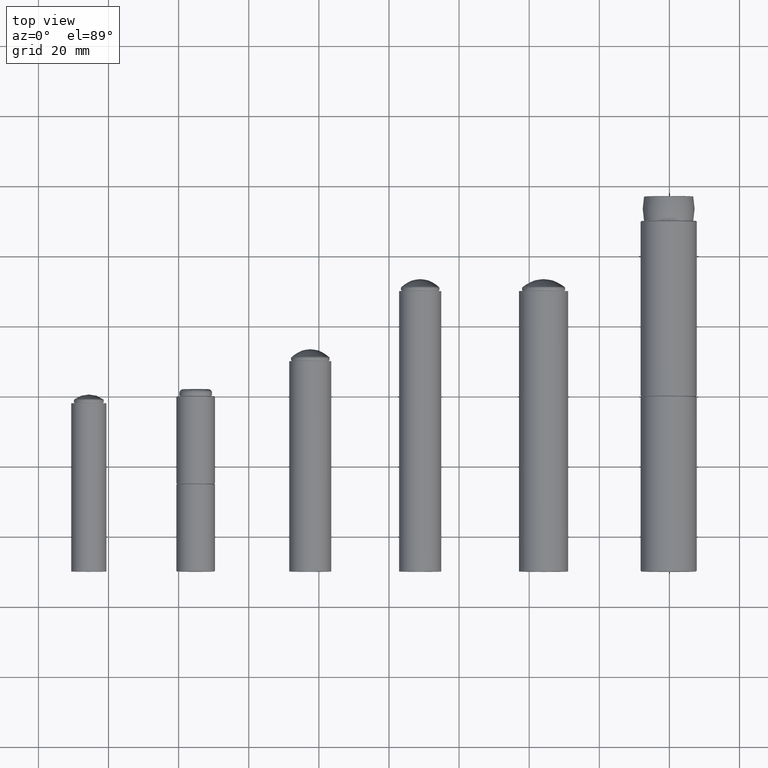
[diagram: clean part render]
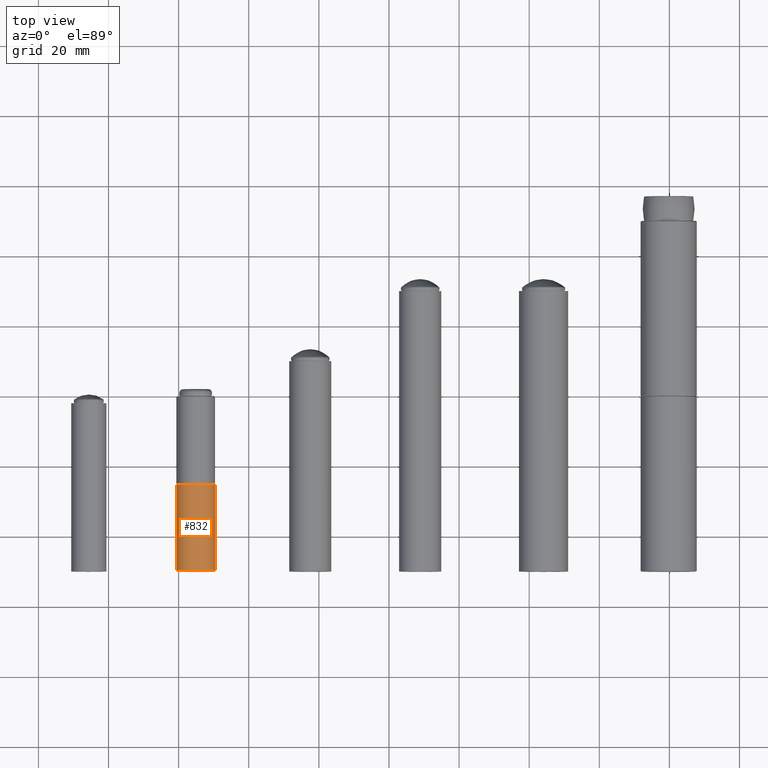
[diagram: same view with one face highlighted and labeled with its STEP entity id]
A machine part, top view. The second image highlights one B-rep face of the part: STEP entity #832.
In plain terms, the highlighted cylindrical surface (bore or boss wall) has radius 5.5 mm, axis along (-0, 1, -0).
Its self-contained STEP definition (entity closure, byte-faithful):
#218=FACE_BOUND('',#365,.T.);
#279=FACE_OUTER_BOUND('',#364,.T.);
#364=EDGE_LOOP('',(#690));
#365=EDGE_LOOP('',(#691));
#473=CIRCLE('',#938,5.5);
#475=CIRCLE('',#941,5.5);
#539=VERTEX_POINT('',#1488);
#541=VERTEX_POINT('',#1493);
#605=EDGE_CURVE('',#539,#539,#473,.T.);
#607=EDGE_CURVE('',#541,#541,#475,.T.);
#690=ORIENTED_EDGE('',*,*,#607,.F.);
#691=ORIENTED_EDGE('',*,*,#605,.F.);
#796=CYLINDRICAL_SURFACE('',#940,5.5);
#832=ADVANCED_FACE('',(#279,#218),#796,.T.);
#938=AXIS2_PLACEMENT_3D('',#1489,#1159,#1160);
#940=AXIS2_PLACEMENT_3D('',#1492,#1163,#1164);
#941=AXIS2_PLACEMENT_3D('',#1494,#1165,#1166);
#1159=DIRECTION('center_axis',(0.,0.,-1.));
#1160=DIRECTION('ref_axis',(-1.,0.,0.));
#1163=DIRECTION('center_axis',(0.,0.,1.));
#1164=DIRECTION('ref_axis',(-1.,0.,0.));
#1165=DIRECTION('center_axis',(0.,0.,1.));
#1166=DIRECTION('ref_axis',(-1.,0.,0.));
#1488=CARTESIAN_POINT('',(5.5,-6.73555739531044E-16,0.2));
#1489=CARTESIAN_POINT('Origin',(0.,0.,0.2));
#1492=CARTESIAN_POINT('Origin',(0.,0.,0.));
#1493=CARTESIAN_POINT('',(5.5,6.73555739531044E-16,24.8));
#1494=CARTESIAN_POINT('Origin',(0.,0.,24.8));